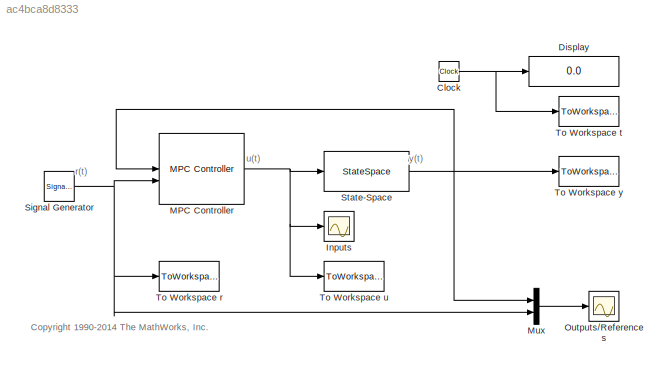
MODEL slx_ac4bca8d8333
KIND model
CONFIG AbsTol = auto
CONFIG EnableMultiTasking = off
CONFIG FixedStep = auto
CONFIG MaxStep = auto
CONFIG MinStep = auto
CONFIG RelTol = 1e-3
CONFIG SampleTimeConstraint = Unconstrained
CONFIG SolverName = ode3
CONFIG StartTime = 0.0
CONFIG StopTime = 10
BLOCK [Clock] Clock
BLOCK [Display] Display
  Decimation = 1
BLOCK [Scope] Inputs
  Floating = off
  NumInputPorts = 1
  ScopeSpecificationString = Simulink.scopes.TimeScopeBlockCfg('CurrentConfiguration', extmgr.ConfigurationSet(extmgr.Configuration('Core','General UI',true),extmgr.Configuration('Core','Source UI',true),extmgr.Configuration('Sources','WiredSimulink',true,'DataLoggingSaveFormat','Structure','DataLoggingLimitDataPoints',true,'DataLoggingDecimation','1','DataLoggingDecimateData',true),extmgr.Configuration('Visuals','Time Domain...<+1668ch>
BLOCK [Reference] MPC Controller  REF=mpclib/MPC Controller  (lib defined in mdl_ae329e0e0455)
  NameLocation = top
  SourceBlock = mpclib/MPC Controller
  SourceType = MPC
BLOCK [Mux] Mux
  DisplayOption = bar
  Inputs = 2
BLOCK [Scope] Outputs//References
  Floating = off
  NumInputPorts = 1
  ScopeSpecificationString = Simulink.scopes.TimeScopeBlockCfg('CurrentConfiguration', extmgr.ConfigurationSet(extmgr.Configuration('Core','General UI',true),extmgr.Configuration('Core','Source UI',true),extmgr.Configuration('Sources','WiredSimulink',true,'DataLoggingSaveFormat','Structure','DataLoggingLimitDataPoints',true,'DataLoggingDecimation','1','DataLoggingDecimateData',true),extmgr.Configuration('Visuals','Time Domain...<+1677ch>
BLOCK [SignalGenerator] Signal Generator
  Frequency = .4
BLOCK [StateSpace] State-Space
  A = plant.A
  B = plant.B
  C = plant.C
  D = plant.D
  InitialCondition = [0;0]
BLOCK [ToWorkspace] To Workspace r
  MaxDataPoints = Inf
  SampleTime = -1
  VariableName = r
BLOCK [ToWorkspace] To Workspace t
  MaxDataPoints = Inf
  SampleTime = -1
  VariableName = t
BLOCK [ToWorkspace] To Workspace u
  MaxDataPoints = Inf
  SampleTime = -1
  VariableName = u
BLOCK [ToWorkspace] To Workspace y
  MaxDataPoints = Inf
  SampleTime = -1
  VariableName = y
ANNOTATION (root): <copyright redacted>
ANNOTATION (root): r(t)
ANNOTATION (root): u(t)
ANNOTATION (root): y(t)
NET Clock:1 -> Display:1, To Workspace t:1
NET MPC Controller:1 -> Inputs:1, State-Space:1, To Workspace u:1
LINE Mux:1 -> Outputs//References:1
NET Signal Generator:1 -> MPC Controller:2, Mux:2, To Workspace r:1
NET State-Space:1 -> MPC Controller:1, Mux:1, To Workspace y:1
note: NET lines group one-source signal fan-out (src -> all destinations, sorted); 1:1 wires keep LINE
